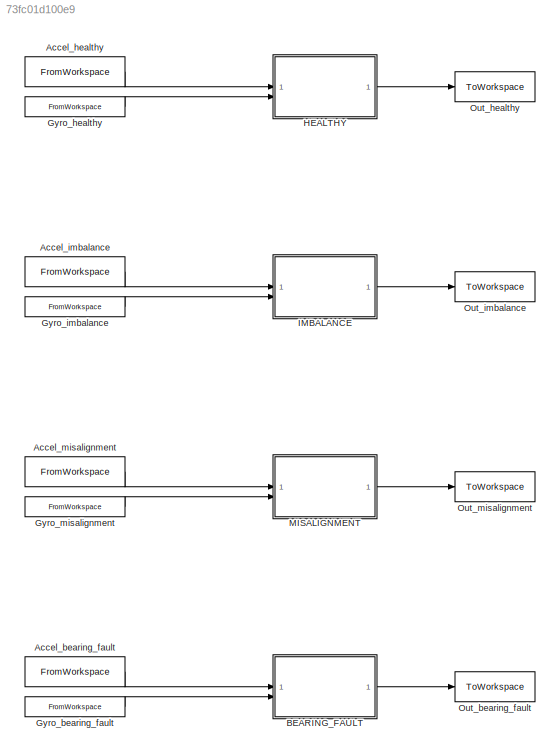
MODEL slx_73fc01d100e9
KIND model
CONFIG AbsTol = auto
CONFIG EnableMultiTasking = off
CONFIG FixedStep = 0.01
CONFIG MaxStep = auto
CONFIG MinStep = auto
CONFIG RelTol = 1e-3
CONFIG SampleTimeConstraint = Unconstrained
CONFIG SolverName = ode4
CONFIG StartTime = 0.0
CONFIG StopTime = 30
BLOCK [FromWorkspace] Accel_bearing_fault
  VariableName = Acceleration_bearing_fault
BLOCK [FromWorkspace] Accel_healthy
  VariableName = Acceleration_healthy
BLOCK [FromWorkspace] Accel_imbalance
  VariableName = Acceleration_imbalance
BLOCK [FromWorkspace] Accel_misalignment
  VariableName = Acceleration_misalignment
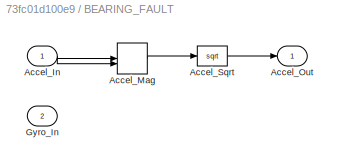
BLOCK [SubSystem] BEARING_FAULT
BLOCK [Inport] BEARING_FAULT/Accel_In
BLOCK [DotProduct] BEARING_FAULT/Accel_Mag
  OutDataTypeStr = Inherit: Inherit via internal rule
BLOCK [Outport] BEARING_FAULT/Accel_Out
BLOCK [Sqrt] BEARING_FAULT/Accel_Sqrt
BLOCK [Inport] BEARING_FAULT/Gyro_In
  Port = 2
BLOCK [FromWorkspace] Gyro_bearing_fault
  VariableName = AngularVelocity_bearing_fault
BLOCK [FromWorkspace] Gyro_healthy
  VariableName = AngularVelocity_healthy
BLOCK [FromWorkspace] Gyro_imbalance
  VariableName = AngularVelocity_imbalance
BLOCK [FromWorkspace] Gyro_misalignment
  VariableName = AngularVelocity_misalignment
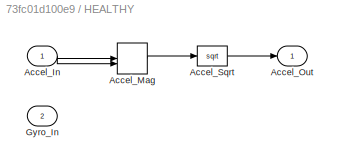
BLOCK [SubSystem] HEALTHY
BLOCK [Inport] HEALTHY/Accel_In
BLOCK [DotProduct] HEALTHY/Accel_Mag
  OutDataTypeStr = Inherit: Inherit via internal rule
BLOCK [Outport] HEALTHY/Accel_Out
BLOCK [Sqrt] HEALTHY/Accel_Sqrt
BLOCK [Inport] HEALTHY/Gyro_In
  Port = 2
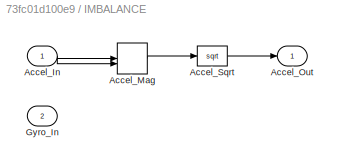
BLOCK [SubSystem] IMBALANCE
BLOCK [Inport] IMBALANCE/Accel_In
BLOCK [DotProduct] IMBALANCE/Accel_Mag
  OutDataTypeStr = Inherit: Inherit via internal rule
BLOCK [Outport] IMBALANCE/Accel_Out
BLOCK [Sqrt] IMBALANCE/Accel_Sqrt
BLOCK [Inport] IMBALANCE/Gyro_In
  Port = 2
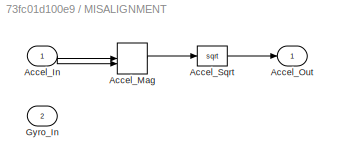
BLOCK [SubSystem] MISALIGNMENT
BLOCK [Inport] MISALIGNMENT/Accel_In
BLOCK [DotProduct] MISALIGNMENT/Accel_Mag
  OutDataTypeStr = Inherit: Inherit via internal rule
BLOCK [Outport] MISALIGNMENT/Accel_Out
BLOCK [Sqrt] MISALIGNMENT/Accel_Sqrt
BLOCK [Inport] MISALIGNMENT/Gyro_In
  Port = 2
BLOCK [ToWorkspace] Out_bearing_fault
  FixptAsFi = on
  MaxDataPoints = inf
  SampleTime = -1
  SaveFormat = Timeseries
  VariableName = data_bearing_fault
BLOCK [ToWorkspace] Out_healthy
  FixptAsFi = on
  MaxDataPoints = inf
  SampleTime = -1
  SaveFormat = Timeseries
  VariableName = data_healthy
BLOCK [ToWorkspace] Out_imbalance
  FixptAsFi = on
  MaxDataPoints = inf
  SampleTime = -1
  SaveFormat = Timeseries
  VariableName = data_imbalance
BLOCK [ToWorkspace] Out_misalignment
  FixptAsFi = on
  MaxDataPoints = inf
  SampleTime = -1
  SaveFormat = Timeseries
  VariableName = data_misalignment
LINE Accel_bearing_fault:1 -> BEARING_FAULT:1
LINE Accel_healthy:1 -> HEALTHY:1
LINE Accel_imbalance:1 -> IMBALANCE:1
LINE Accel_misalignment:1 -> MISALIGNMENT:1
NET BEARING_FAULT/Accel_In:1 -> BEARING_FAULT/Accel_Mag:1, BEARING_FAULT/Accel_Mag:2
LINE BEARING_FAULT/Accel_Mag:1 -> BEARING_FAULT/Accel_Sqrt:1
LINE BEARING_FAULT/Accel_Sqrt:1 -> BEARING_FAULT/Accel_Out:1
LINE BEARING_FAULT:1 -> Out_bearing_fault:1
LINE Gyro_bearing_fault:1 -> BEARING_FAULT:2
LINE Gyro_healthy:1 -> HEALTHY:2
LINE Gyro_imbalance:1 -> IMBALANCE:2
LINE Gyro_misalignment:1 -> MISALIGNMENT:2
NET HEALTHY/Accel_In:1 -> HEALTHY/Accel_Mag:1, HEALTHY/Accel_Mag:2
LINE HEALTHY/Accel_Mag:1 -> HEALTHY/Accel_Sqrt:1
LINE HEALTHY/Accel_Sqrt:1 -> HEALTHY/Accel_Out:1
LINE HEALTHY:1 -> Out_healthy:1
NET IMBALANCE/Accel_In:1 -> IMBALANCE/Accel_Mag:1, IMBALANCE/Accel_Mag:2
LINE IMBALANCE/Accel_Mag:1 -> IMBALANCE/Accel_Sqrt:1
LINE IMBALANCE/Accel_Sqrt:1 -> IMBALANCE/Accel_Out:1
LINE IMBALANCE:1 -> Out_imbalance:1
NET MISALIGNMENT/Accel_In:1 -> MISALIGNMENT/Accel_Mag:1, MISALIGNMENT/Accel_Mag:2
LINE MISALIGNMENT/Accel_Mag:1 -> MISALIGNMENT/Accel_Sqrt:1
LINE MISALIGNMENT/Accel_Sqrt:1 -> MISALIGNMENT/Accel_Out:1
LINE MISALIGNMENT:1 -> Out_misalignment:1
note: NET lines group one-source signal fan-out (src -> all destinations, sorted); 1:1 wires keep LINE
